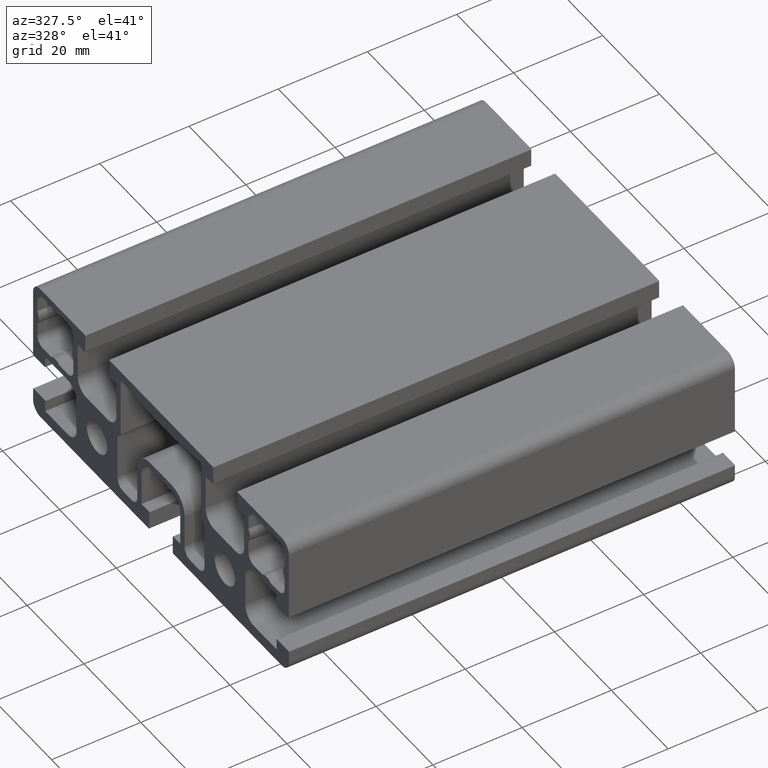
[diagram: clean part render]
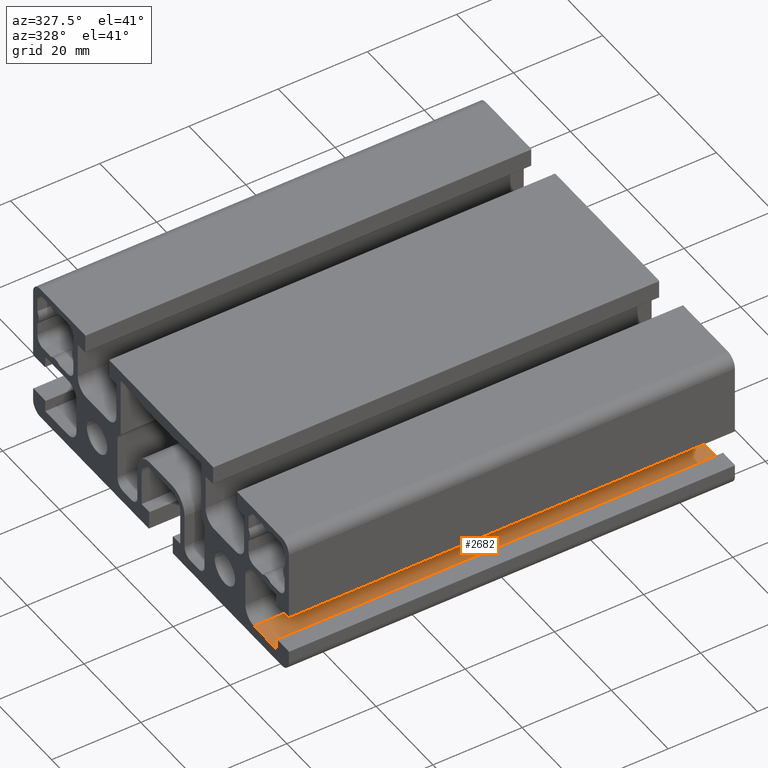
[diagram: same view with one face highlighted and labeled with its STEP entity id]
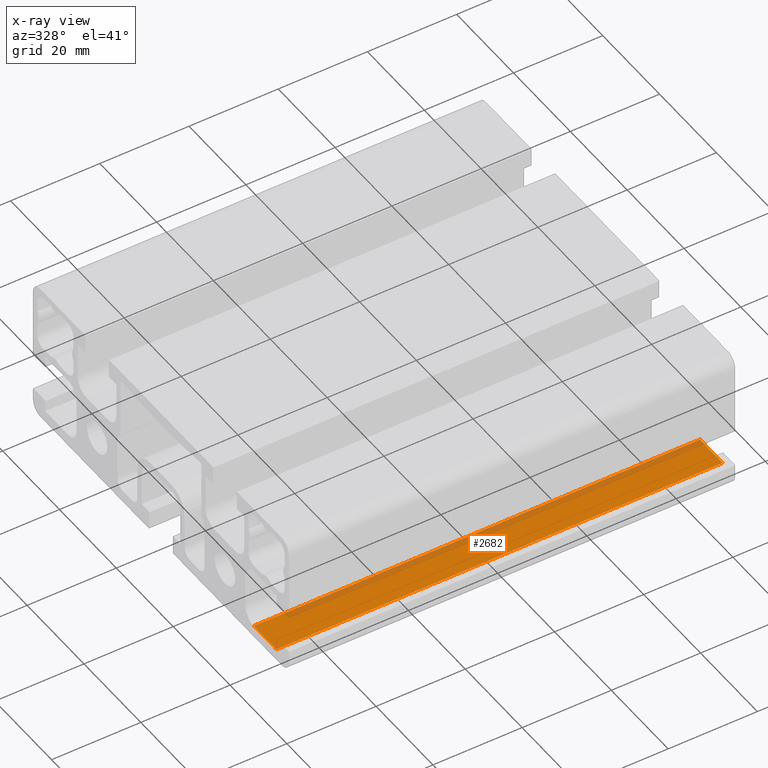
[diagram: x-ray of the same camera — body ghosted, the highlighted face saturated]
A machine part, auxiliary view. The second image highlights one B-rep face of the part: STEP entity #2682.
The next image is the same camera in x-ray: the body ghosted, the highlighted face saturated — about 18% of this face is hidden behind the body in this view.
In plain terms, the highlighted planar face has unit normal (0, 0, 1).
Its self-contained STEP definition (entity closure, byte-faithful):
#91=PLANE('',#2960);
#223=FACE_OUTER_BOUND('',#362,.T.);
#362=EDGE_LOOP('',(#2336,#2337,#2338,#2339));
#645=LINE('',#4235,#915);
#760=LINE('',#4532,#1030);
#761=LINE('',#4535,#1031);
#762=LINE('',#4536,#1032);
#915=VECTOR('',#3406,10.);
#1030=VECTOR('',#3733,10.);
#1031=VECTOR('',#3736,10.);
#1032=VECTOR('',#3737,10.);
#1221=VERTEX_POINT('',#4232);
#1222=VERTEX_POINT('',#4234);
#1298=VERTEX_POINT('',#4530);
#1299=VERTEX_POINT('',#4534);
#1539=EDGE_CURVE('',#1221,#1222,#645,.T.);
#1688=EDGE_CURVE('',#1298,#1221,#760,.T.);
#1689=EDGE_CURVE('',#1299,#1298,#761,.T.);
#1690=EDGE_CURVE('',#1299,#1222,#762,.T.);
#2336=ORIENTED_EDGE('',*,*,#1688,.F.);
#2337=ORIENTED_EDGE('',*,*,#1689,.F.);
#2338=ORIENTED_EDGE('',*,*,#1690,.T.);
#2339=ORIENTED_EDGE('',*,*,#1539,.F.);
#2682=ADVANCED_FACE('',(#223),#91,.T.);
#2960=AXIS2_PLACEMENT_3D('',#4533,#3734,#3735);
#3406=DIRECTION('',(0.,1.,0.));
#3733=DIRECTION('',(-1.,0.,0.));
#3734=DIRECTION('center_axis',(0.,0.,1.));
#3735=DIRECTION('ref_axis',(0.,-1.,0.));
#3736=DIRECTION('',(0.,-1.,0.));
#3737=DIRECTION('',(-1.,0.,0.));
#4232=CARTESIAN_POINT('',(-50.,-40.7,-13.3));
#4234=CARTESIAN_POINT('',(-50.,-32.7,-13.3));
#4235=CARTESIAN_POINT('',(-50.,-40.7,-13.3));
#4530=CARTESIAN_POINT('',(50.,-40.7,-13.3));
#4532=CARTESIAN_POINT('',(0.,-40.7,-13.3));
#4533=CARTESIAN_POINT('Origin',(0.,-32.7,-13.3));
#4534=CARTESIAN_POINT('',(50.,-32.7,-13.3));
#4535=CARTESIAN_POINT('',(50.,-40.7,-13.3));
#4536=CARTESIAN_POINT('',(0.,-32.7,-13.3));